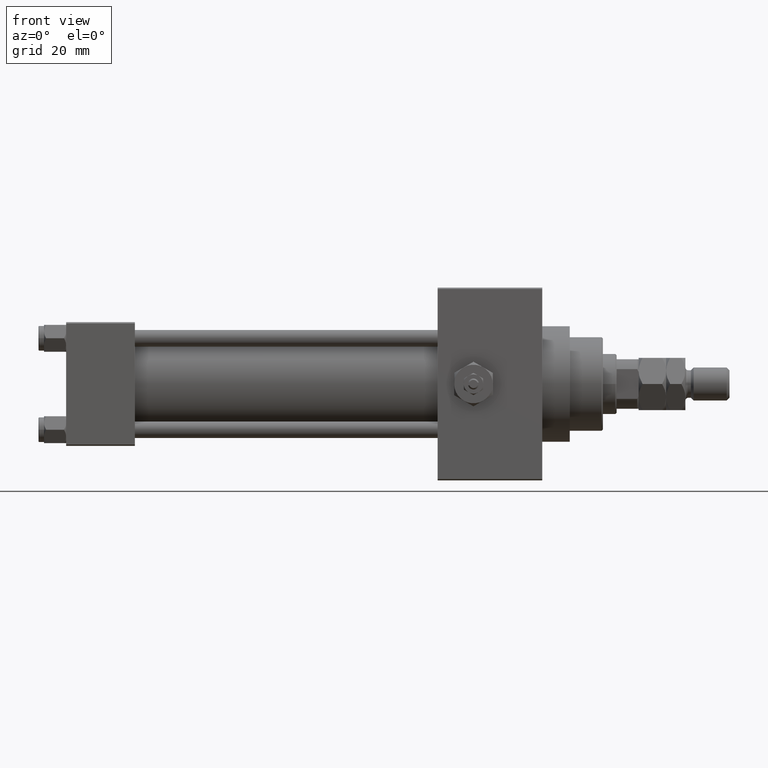
[diagram: clean part render]
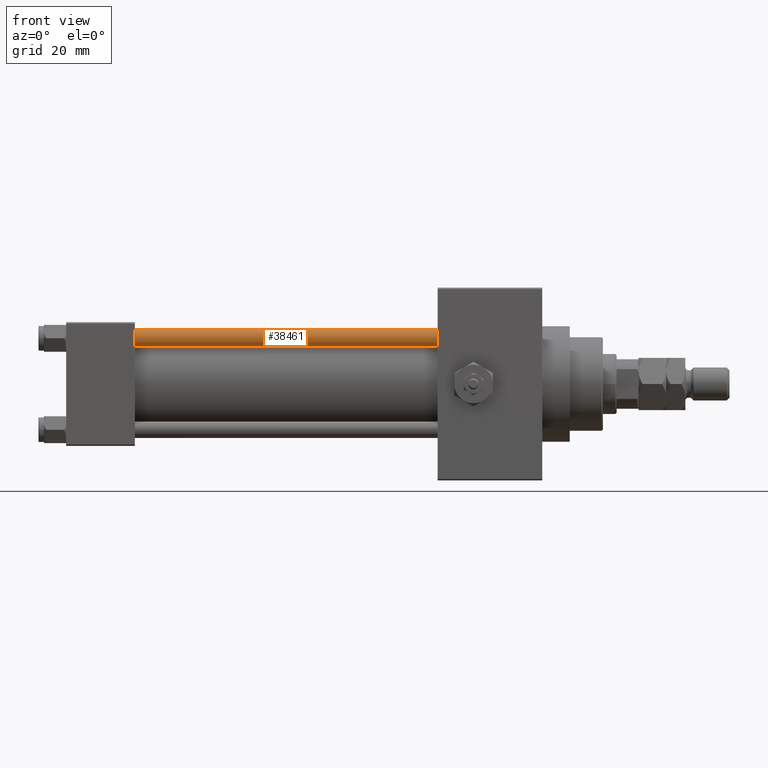
[diagram: same view with one face highlighted and labeled with its STEP entity id]
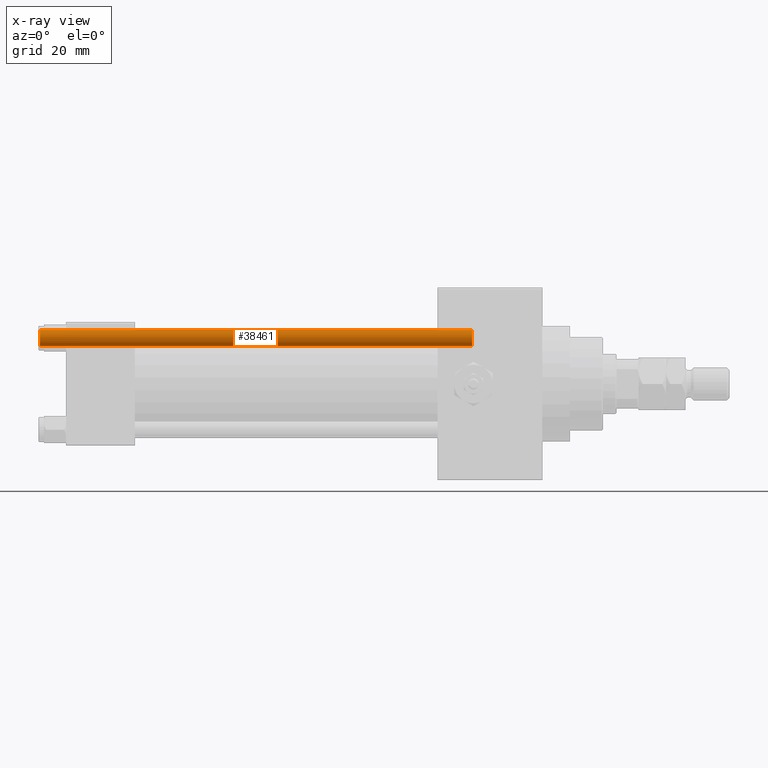
[diagram: x-ray of the same camera — body ghosted, the highlighted face saturated]
A machine part, front view. The second image highlights one B-rep face of the part: STEP entity #38461.
The next image is the same camera in x-ray: the body ghosted, the highlighted face saturated — about 0% of this face is hidden behind the body in this view.
In plain terms, the highlighted cylindrical surface (edge-blend (fillet) strip) has radius 3 mm, axis along (1, 0, 0).
Its self-contained STEP definition (entity closure, byte-faithful):
#429 = AXIS2_PLACEMENT_3D ( 'NONE', #31542, #47087, #19578 ) ;
#1488 = CARTESIAN_POINT ( 'NONE',  ( 0.000000000000000000, 0.000000000000000000, 158.0000000000000000 ) ) ;
#3525 = LINE ( 'NONE', #27196, #45400 ) ;
#5445 = CIRCLE ( 'NONE', #50183, 3.000000000000000444 ) ;
#8110 = DIRECTION ( 'NONE',  ( -0.000000000000000000, -0.000000000000000000, -1.000000000000000000 ) ) ;
#9359 = EDGE_CURVE ( 'NONE', #42161, #42613, #48772, .T. ) ;
#11202 = CARTESIAN_POINT ( 'NONE',  ( -3.000000000000000444, 0.000000000000000000, 0.5000000000000281997 ) ) ;
#12289 = DIRECTION ( 'NONE',  ( -0.000000000000000000, -0.000000000000000000, 1.000000000000000000 ) ) ;
#13857 = CARTESIAN_POINT ( 'NONE',  ( 3.000000000000000444, 3.673940397442060361E-16, 158.0000000000000000 ) ) ;
#14240 = VERTEX_POINT ( 'NONE', #24870 ) ;
#14365 = EDGE_LOOP ( 'NONE', ( #34663, #18262, #48948, #31345 ) ) ;
#15598 = DIRECTION ( 'NONE',  ( 1.000000000000000000, 0.000000000000000000, 0.000000000000000000 ) ) ;
#18262 = ORIENTED_EDGE ( 'NONE', *, *, #9359, .T. ) ;
#19578 = DIRECTION ( 'NONE',  ( 1.000000000000000000, 0.000000000000000000, 0.000000000000000000 ) ) ;
#20772 = CIRCLE ( 'NONE', #429, 3.000000000000000444 ) ;
#20821 = DIRECTION ( 'NONE',  ( -1.000000000000000000, 0.000000000000000000, 0.000000000000000000 ) ) ;
#21567 = CYLINDRICAL_SURFACE ( 'NONE', #40307, 3.000000000000000444 ) ;
#24870 = CARTESIAN_POINT ( 'NONE',  ( -3.000000000000000444, 0.000000000000000000, 157.5000000000000000 ) ) ;
#27196 = CARTESIAN_POINT ( 'NONE',  ( -3.000000000000000444, 0.000000000000000000, 158.0000000000000000 ) ) ;
#28358 = VECTOR ( 'NONE', #41124, 1000.000000000000000 ) ;
#31345 = ORIENTED_EDGE ( 'NONE', *, *, #47273, .F. ) ;
#31498 = VERTEX_POINT ( 'NONE', #11202 ) ;
#31542 = CARTESIAN_POINT ( 'NONE',  ( 0.000000000000000000, 0.000000000000000000, 157.5000000000000000 ) ) ;
#33698 = EDGE_CURVE ( 'NONE', #42613, #31498, #5445, .T. ) ;
#34663 = ORIENTED_EDGE ( 'NONE', *, *, #38278, .T. ) ;
#38278 = EDGE_CURVE ( 'NONE', #14240, #42161, #20772, .T. ) ;
#38461 = ADVANCED_FACE ( 'NONE', ( #48844 ), #21567, .T. ) ;
#40307 = AXIS2_PLACEMENT_3D ( 'NONE', #1488, #48093, #20821 ) ;
#41124 = DIRECTION ( 'NONE',  ( -0.000000000000000000, -0.000000000000000000, -1.000000000000000000 ) ) ;
#42161 = VERTEX_POINT ( 'NONE', #42957 ) ;
#42613 = VERTEX_POINT ( 'NONE', #49676 ) ;
#42869 = CARTESIAN_POINT ( 'NONE',  ( 0.000000000000000000, 0.000000000000000000, 0.5000000000000281997 ) ) ;
#42957 = CARTESIAN_POINT ( 'NONE',  ( 3.000000000000000444, 3.673940397442060361E-16, 157.5000000000000000 ) ) ;
#45400 = VECTOR ( 'NONE', #8110, 1000.000000000000000 ) ;
#47087 = DIRECTION ( 'NONE',  ( 0.000000000000000000, 0.000000000000000000, -1.000000000000000000 ) ) ;
#47273 = EDGE_CURVE ( 'NONE', #14240, #31498, #3525, .T. ) ;
#48093 = DIRECTION ( 'NONE',  ( -0.000000000000000000, -0.000000000000000000, -1.000000000000000000 ) ) ;
#48772 = LINE ( 'NONE', #13857, #28358 ) ;
#48844 = FACE_OUTER_BOUND ( 'NONE', #14365, .T. ) ;
#48948 = ORIENTED_EDGE ( 'NONE', *, *, #33698, .T. ) ;
#49676 = CARTESIAN_POINT ( 'NONE',  ( 3.000000000000000444, 3.673940397442060361E-16, 0.5000000000000281997 ) ) ;
#50183 = AXIS2_PLACEMENT_3D ( 'NONE', #42869, #12289, #15598 ) ;